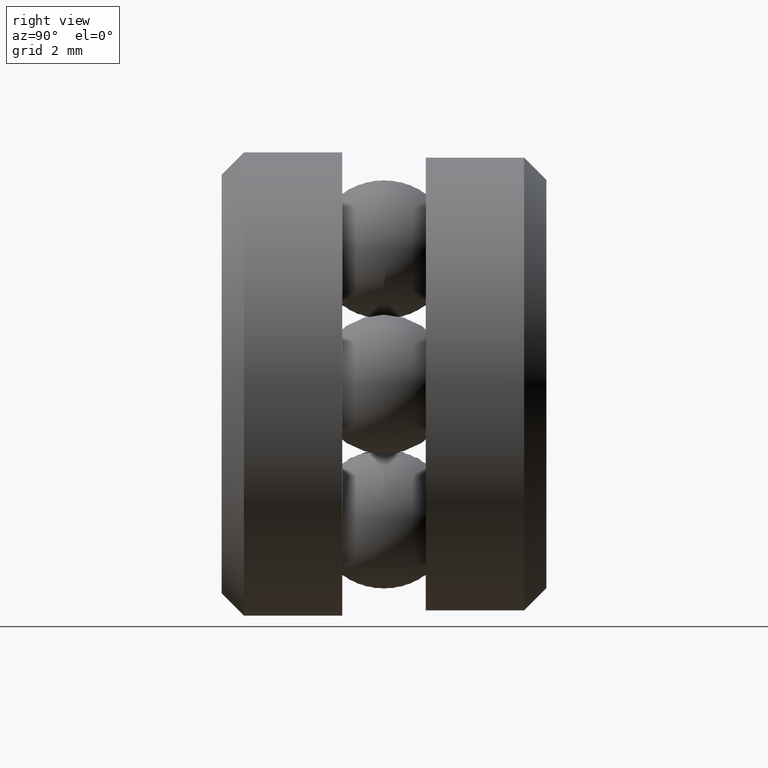
[diagram: clean part render]
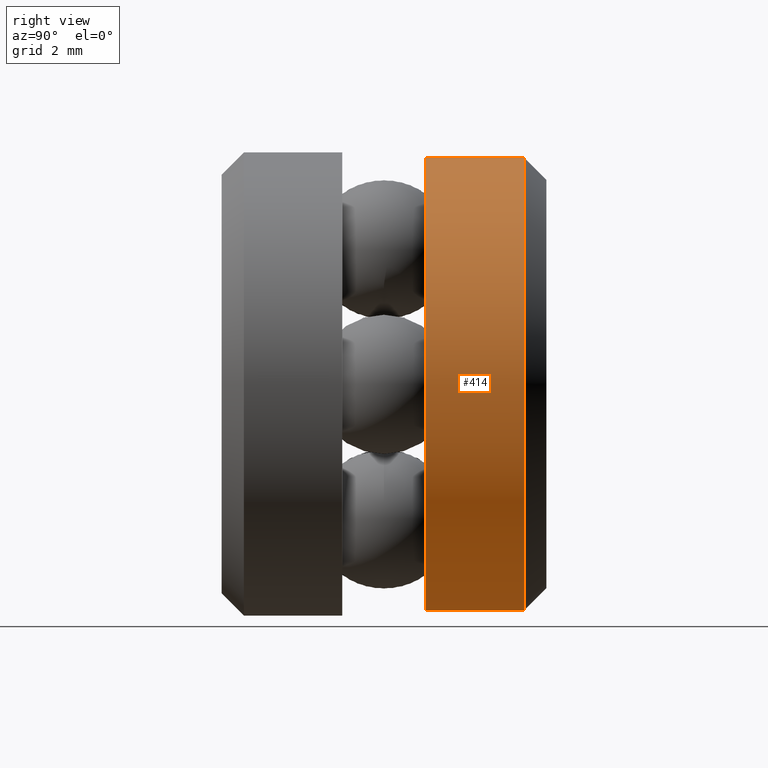
[diagram: same view with one face highlighted and labeled with its STEP entity id]
A machine part, right view. The second image highlights one B-rep face of the part: STEP entity #414.
In plain terms, the highlighted cylindrical surface (bore or boss wall) has radius 7.7597 mm, axis along (-0, 1, -0).
Its self-contained STEP definition (entity closure, byte-faithful):
#46 = ORIENTED_EDGE ( 'NONE', *, *, #333, .T. ) ;
#87 = CARTESIAN_POINT ( 'NONE',  ( 0.0000000000000000000, 0.4074999999999997000, 0.3055000000000000500 ) ) ;
#124 = VERTEX_POINT ( 'NONE', #138 ) ;
#138 = CARTESIAN_POINT ( 'NONE',  ( 0.0000000000000000000, 0.2750000000000000200, 0.3055000000000000500 ) ) ;
#148 = AXIS2_PLACEMENT_3D ( 'NONE', #542, #523, #514 ) ;
#190 = ORIENTED_EDGE ( 'NONE', *, *, #280, .F. ) ;
#213 = DIRECTION ( 'NONE',  ( 0.0000000000000000000, 0.0000000000000000000, 1.000000000000000000 ) ) ;
#244 = AXIS2_PLACEMENT_3D ( 'NONE', #393, #423, #403 ) ;
#272 = CIRCLE ( 'NONE', #483, 0.3055000000000000500 ) ;
#280 = EDGE_CURVE ( 'NONE', #354, #354, #417, .T. ) ;
#285 = EDGE_LOOP ( 'NONE', ( #190 ) ) ;
#327 = EDGE_LOOP ( 'NONE', ( #46 ) ) ;
#333 = EDGE_CURVE ( 'NONE', #124, #124, #272, .T. ) ;
#354 = VERTEX_POINT ( 'NONE', #87 ) ;
#364 = CARTESIAN_POINT ( 'NONE',  ( 0.0000000000000000000, 0.2750000000000000200, 0.0000000000000000000 ) ) ;
#373 = FACE_OUTER_BOUND ( 'NONE', #285, .T. ) ;
#379 = FACE_OUTER_BOUND ( 'NONE', #327, .T. ) ;
#393 = CARTESIAN_POINT ( 'NONE',  ( 0.0000000000000000000, 0.4074999999999997000, 0.0000000000000000000 ) ) ;
#403 = DIRECTION ( 'NONE',  ( 0.0000000000000000000, 0.0000000000000000000, 1.000000000000000000 ) ) ;
#414 = ADVANCED_FACE ( 'NONE', ( #379, #373 ), #520, .T. ) ;
#416 = DIRECTION ( 'NONE',  ( -0.0000000000000000000, 1.000000000000000000, -0.0000000000000000000 ) ) ;
#417 = CIRCLE ( 'NONE', #244, 0.3055000000000000500 ) ;
#423 = DIRECTION ( 'NONE',  ( -0.0000000000000000000, 1.000000000000000000, -0.0000000000000000000 ) ) ;
#483 = AXIS2_PLACEMENT_3D ( 'NONE', #364, #416, #213 ) ;
#514 = DIRECTION ( 'NONE',  ( 0.0000000000000000000, 0.0000000000000000000, 1.000000000000000000 ) ) ;
#520 = CYLINDRICAL_SURFACE ( 'NONE', #148, 0.3055000000000000500 ) ;
#523 = DIRECTION ( 'NONE',  ( -0.0000000000000000000, 1.000000000000000000, -0.0000000000000000000 ) ) ;
#542 = CARTESIAN_POINT ( 'NONE',  ( 0.0000000000000000000, 0.0000000000000000000, 0.0000000000000000000 ) ) ;